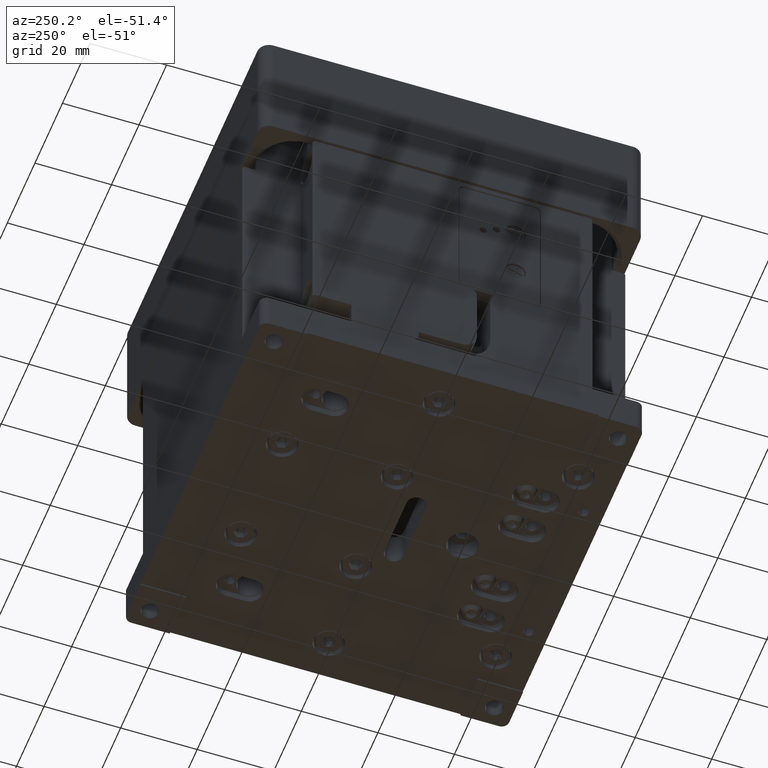
[diagram: clean part render]
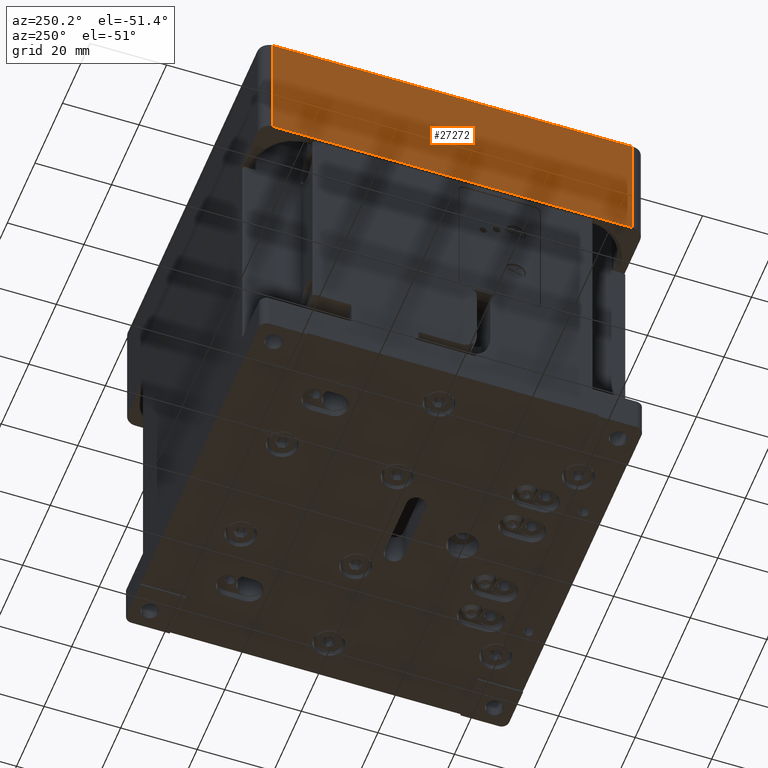
[diagram: same view with one face highlighted and labeled with its STEP entity id]
A machine part, auxiliary view. The second image highlights one B-rep face of the part: STEP entity #27272.
In plain terms, the highlighted planar face has unit normal (1, -0, 0).
Its self-contained STEP definition (entity closure, byte-faithful):
#2167 = FACE_OUTER_BOUND ( 'NONE', #12120, .T. ) ;
#2349 = ORIENTED_EDGE ( 'NONE', *, *, #21853, .F. ) ;
#4478 = CARTESIAN_POINT ( 'NONE',  ( -49.99999999999998579, -50.00000000000000000, 100.0000000000000000 ) ) ;
#5867 = ORIENTED_EDGE ( 'NONE', *, *, #21567, .F. ) ;
#8142 = VECTOR ( 'NONE', #28802, 1000.000000000000000 ) ;
#8968 = VERTEX_POINT ( 'NONE', #17921 ) ;
#9811 = VERTEX_POINT ( 'NONE', #25514 ) ;
#12120 = EDGE_LOOP ( 'NONE', ( #2349, #45040, #5867, #12459 ) ) ;
#12459 = ORIENTED_EDGE ( 'NONE', *, *, #37077, .F. ) ;
#12715 = LINE ( 'NONE', #37914, #43039 ) ;
#15528 = LINE ( 'NONE', #4478, #37418 ) ;
#15917 = DIRECTION ( 'NONE',  ( 3.673419846319648462E-39, 0.000000000000000000, -1.000000000000000000 ) ) ;
#16028 = DIRECTION ( 'NONE',  ( 0.000000000000000000, 1.000000000000000000, 7.001238251335375373E-39 ) ) ;
#16294 = PLANE ( 'NONE',  #35240 ) ;
#17921 = CARTESIAN_POINT ( 'NONE',  ( -49.99999999999999289, -47.00000000000000000, 68.09999999999999432 ) ) ;
#20231 = CARTESIAN_POINT ( 'NONE',  ( -49.99999999999998579, -47.00000000000000000, 100.0000000000014211 ) ) ;
#21110 = VECTOR ( 'NONE', #15917, 1000.000000000000000 ) ;
#21173 = CARTESIAN_POINT ( 'NONE',  ( -49.99999999999999289, 47.00000000000000000, 68.09999999999999432 ) ) ;
#21284 = VERTEX_POINT ( 'NONE', #20231 ) ;
#21567 = EDGE_CURVE ( 'NONE', #21284, #8968, #33789, .T. ) ;
#21853 = EDGE_CURVE ( 'NONE', #29064, #9811, #38939, .T. ) ;
#25514 = CARTESIAN_POINT ( 'NONE',  ( -49.99999999996020250, 47.00000000000000000, 100.0000000000341203 ) ) ;
#27272 = ADVANCED_FACE ( 'NONE', ( #2167 ), #16294, .F. ) ;
#27572 = DIRECTION ( 'NONE',  ( 1.000000000000000000, -5.143697508253527404E-77, 3.673419846319648462E-39 ) ) ;
#28802 = DIRECTION ( 'NONE',  ( -3.673419846319648462E-39, -7.001238251335375373E-39, 1.000000000000000000 ) ) ;
#29007 = EDGE_CURVE ( 'NONE', #8968, #29064, #12715, .T. ) ;
#29064 = VERTEX_POINT ( 'NONE', #21173 ) ;
#29168 = DIRECTION ( 'NONE',  ( -5.143697508253527404E-77, -1.000000000000000000, -1.889496051028343137E-115 ) ) ;
#31120 = DIRECTION ( 'NONE',  ( 3.673419846319648462E-39, 0.000000000000000000, -1.000000000000000000 ) ) ;
#32679 = CARTESIAN_POINT ( 'NONE',  ( -49.99999999999998579, -47.00000000000000000, 100.5000000000000000 ) ) ;
#33789 = LINE ( 'NONE', #32679, #21110 ) ;
#35240 = AXIS2_PLACEMENT_3D ( 'NONE', #37493, #27572, #31120 ) ;
#35428 = CARTESIAN_POINT ( 'NONE',  ( -49.99999999999998579, 47.00000000000000000, 100.5000000000000000 ) ) ;
#37077 = EDGE_CURVE ( 'NONE', #9811, #21284, #15528, .T. ) ;
#37418 = VECTOR ( 'NONE', #29168, 1000.000000000000000 ) ;
#37493 = CARTESIAN_POINT ( 'NONE',  ( -49.99999999999998579, -50.00000000000000000, 100.5000000000000000 ) ) ;
#37914 = CARTESIAN_POINT ( 'NONE',  ( -50.00000000000000000, -1.285924377063381912E-75, 68.09999999999999432 ) ) ;
#38939 = LINE ( 'NONE', #35428, #8142 ) ;
#43039 = VECTOR ( 'NONE', #16028, 1000.000000000000000 ) ;
#45040 = ORIENTED_EDGE ( 'NONE', *, *, #29007, .F. ) ;